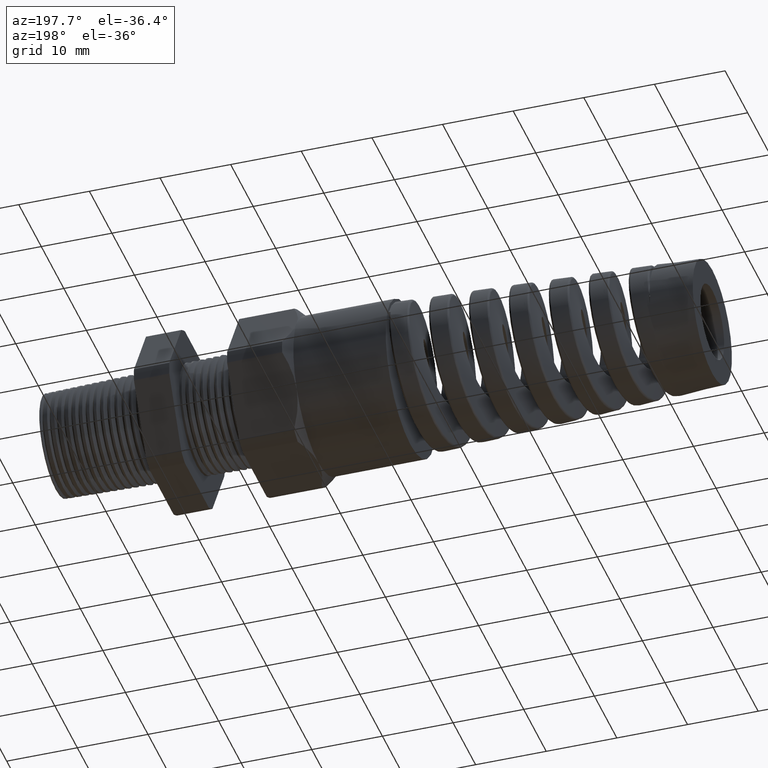
[diagram: clean part render]
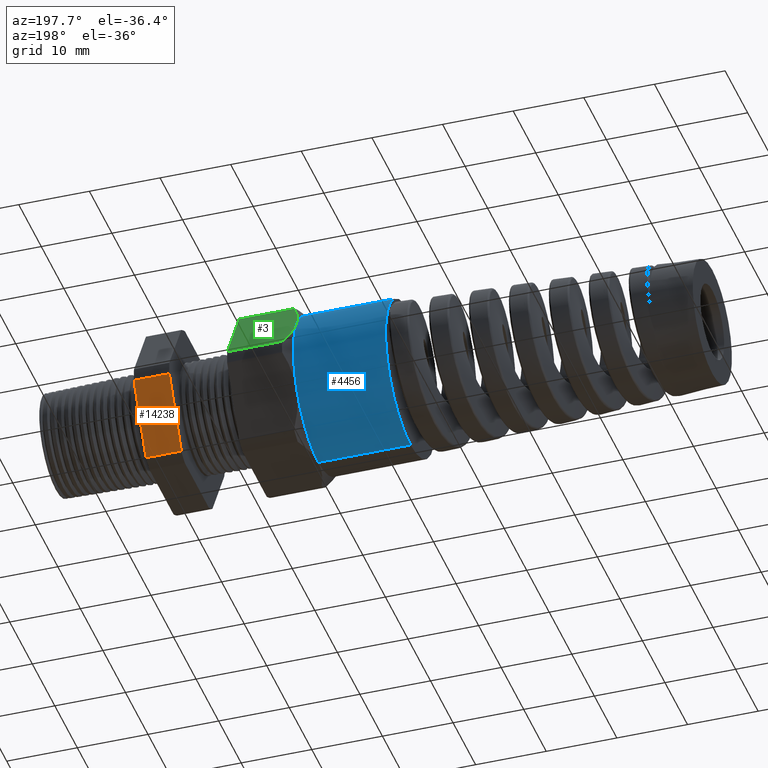
[diagram: same view with three faces highlighted in distinct colors, each labeled with its STEP entity id]
A machine part, auxiliary view with three faces highlighted in distinct colors.
Their STEP definitions:

[orange] entity #14238 — the highlighted planar face has unit normal (0, 0.866, -0.5).
#3523 = VERTEX_POINT ( 'NONE', #7512 ) ;
#3803 = VERTEX_POINT ( 'NONE', #7496 ) ;
#5005 = EDGE_CURVE ( 'NONE', #3523, #3803, #9235, .T. ) ;
#7496 = CARTESIAN_POINT ( 'NONE',  ( -0.3100000000000000000, 0.4815054990391102200, -0.03600801154045404200 ) ) ;
#7512 = CARTESIAN_POINT ( 'NONE',  ( -0.3100000000000000000, 0.2719366022533517000, -0.3989919884595459800 ) ) ;
#9232 = DIRECTION ( 'NONE',  ( 0.0000000000000000000, 0.4999999999999998300, 0.8660254037844386000 ) ) ;
#9233 = VECTOR ( 'NONE', #9232, 39.37007874015748900 ) ;
#9234 = CARTESIAN_POINT ( 'NONE',  ( -0.3100000000000000000, 0.5942210506462308800, 0.1592210506462307400 ) ) ;
#9235 = LINE ( 'NONE', #9234, #9233 ) ;
#9409 = DIRECTION ( 'NONE',  ( 0.0000000000000000000, 0.4999999999999998300, 0.8660254037844386000 ) ) ;
#9410 = DIRECTION ( 'NONE',  ( 0.0000000000000000000, 0.8660254037844387100, -0.4999999999999998900 ) ) ;
#9411 = CARTESIAN_POINT ( 'NONE',  ( 0.2800000000000000300, 0.4815054990391102700, -0.03600801154045400000 ) ) ;
#9412 = AXIS2_PLACEMENT_3D ( 'NONE', #9411, #9410, #9409 ) ;
#9413 = PLANE ( 'NONE',  #9412 ) ;
#9414 = FACE_OUTER_BOUND ( 'NONE', #14229, .T. ) ;
#9428 = DIRECTION ( 'NONE',  ( -1.000000000000000000, 0.0000000000000000000, 0.0000000000000000000 ) ) ;
#9429 = VECTOR ( 'NONE', #9428, 39.37007874015748100 ) ;
#9430 = CARTESIAN_POINT ( 'NONE',  ( 0.2800000000000000300, 0.4815054990391102700, -0.03600801154045400000 ) ) ;
#9432 = LINE ( 'NONE', #9430, #9429 ) ;
#9438 = CARTESIAN_POINT ( 'NONE',  ( -0.5068503937007874400, 0.4815054990391102700, -0.03600801154045400000 ) ) ;
#9449 = DIRECTION ( 'NONE',  ( -1.000000000000000000, 0.0000000000000000000, 0.0000000000000000000 ) ) ;
#9450 = VECTOR ( 'NONE', #9449, 39.37007874015748100 ) ;
#9451 = CARTESIAN_POINT ( 'NONE',  ( 0.2800000000000000300, 0.2719366022533517000, -0.3989919884595459800 ) ) ;
#9452 = LINE ( 'NONE', #9451, #9450 ) ;
#9453 = CARTESIAN_POINT ( 'NONE',  ( -0.5068503937007874400, 0.2719366022533516400, -0.3989919884595459800 ) ) ;
#9455 = DIRECTION ( 'NONE',  ( 0.0000000000000000000, -0.4999999999999998300, -0.8660254037844386000 ) ) ;
#9456 = VECTOR ( 'NONE', #9455, 39.37007874015748900 ) ;
#9457 = CARTESIAN_POINT ( 'NONE',  ( -0.5068503937007874400, 0.5942210506462308800, 0.1592210506462307400 ) ) ;
#9458 = LINE ( 'NONE', #9457, #9456 ) ;
#14229 = EDGE_LOOP ( 'NONE', ( #14233, #14268, #14264, #14261 ) ) ;
#14233 = ORIENTED_EDGE ( 'NONE', *, *, #14236, .F. ) ;
#14235 = VERTEX_POINT ( 'NONE', #9438 ) ;
#14236 = EDGE_CURVE ( 'NONE', #3803, #14235, #9432, .T. ) ;
#14238 = ADVANCED_FACE ( 'NONE', ( #9414 ), #9413, .T. ) ;
#14258 = EDGE_CURVE ( 'NONE', #14235, #14262, #9458, .T. ) ;
#14261 = ORIENTED_EDGE ( 'NONE', *, *, #14258, .F. ) ;
#14262 = VERTEX_POINT ( 'NONE', #9453 ) ;
#14263 = EDGE_CURVE ( 'NONE', #3523, #14262, #9452, .T. ) ;
#14264 = ORIENTED_EDGE ( 'NONE', *, *, #14263, .T. ) ;
#14268 = ORIENTED_EDGE ( 'NONE', *, *, #5005, .F. ) ;

[blue] entity #4456 — the highlighted cylindrical surface (partial cylindrical patch) has radius 11.049 mm, axis along (1, 0, 0).
#4383 = VERTEX_POINT ( 'NONE', #7878 ) ;
#4399 = VERTEX_POINT ( 'NONE', #8137 ) ;
#4441 = EDGE_LOOP ( 'NONE', ( #4454, #4492, #4483, #4478, #4481, #4511 ) ) ;
#4449 = EDGE_CURVE ( 'NONE', #4383, #4399, #8426, .T. ) ;
#4454 = ORIENTED_EDGE ( 'NONE', *, *, #4449, .F. ) ;
#4456 = ADVANCED_FACE ( 'NONE', ( #8399 ), #8391, .T. ) ;
#4477 = VERTEX_POINT ( 'NONE', #8537 ) ;
#4478 = ORIENTED_EDGE ( 'NONE', *, *, #4482, .F. ) ;
#4479 = EDGE_CURVE ( 'NONE', #4484, #4477, #8530, .T. ) ;
#4480 = VERTEX_POINT ( 'NONE', #8533 ) ;
#4481 = ORIENTED_EDGE ( 'NONE', *, *, #4479, .F. ) ;
#4482 = EDGE_CURVE ( 'NONE', #4477, #4480, #8678, .T. ) ;
#4483 = ORIENTED_EDGE ( 'NONE', *, *, #4485, .F. ) ;
#4484 = VERTEX_POINT ( 'NONE', #8670 ) ;
#4485 = EDGE_CURVE ( 'NONE', #4480, #4489, #8663, .T. ) ;
#4488 = EDGE_CURVE ( 'NONE', #4383, #4489, #8664, .T. ) ;
#4489 = VERTEX_POINT ( 'NONE', #8644 ) ;
#4492 = ORIENTED_EDGE ( 'NONE', *, *, #4488, .T. ) ;
#4511 = ORIENTED_EDGE ( 'NONE', *, *, #4512, .F. ) ;
#4512 = EDGE_CURVE ( 'NONE', #4399, #4484, #8742, .T. ) ;
#7878 = CARTESIAN_POINT ( 'NONE',  ( -1.697947509874504500, 5.327213576290985700E-017, 0.4349999999999999400 ) ) ;
#8137 = CARTESIAN_POINT ( 'NONE',  ( -1.697947509874504500, 0.0000000000000000000, -0.4349999999999999400 ) ) ;
#8389 = AXIS2_PLACEMENT_3D ( 'NONE', #8397, #8518, #8516 ) ;
#8391 = CYLINDRICAL_SURFACE ( 'NONE', #8389, 0.4350000000000000000 ) ;
#8397 = CARTESIAN_POINT ( 'NONE',  ( 1.326736918405036800, 0.0000000000000000000, 0.0000000000000000000 ) ) ;
#8399 = FACE_OUTER_BOUND ( 'NONE', #4441, .T. ) ;
#8418 = DIRECTION ( 'NONE',  ( 0.0000000000000000000, 0.0000000000000000000, 1.000000000000000000 ) ) ;
#8420 = DIRECTION ( 'NONE',  ( -1.000000000000000000, 0.0000000000000000000, 0.0000000000000000000 ) ) ;
#8422 = CARTESIAN_POINT ( 'NONE',  ( -1.697947509874504500, 0.0000000000000000000, 0.0000000000000000000 ) ) ;
#8424 = AXIS2_PLACEMENT_3D ( 'NONE', #8422, #8420, #8418 ) ;
#8426 = CIRCLE ( 'NONE', #8424, 0.4349999999999999400 ) ;
#8516 = DIRECTION ( 'NONE',  ( 0.0000000000000000000, 0.0000000000000000000, -1.000000000000000000 ) ) ;
#8518 = DIRECTION ( 'NONE',  ( 1.000000000000000000, 0.0000000000000000000, 0.0000000000000000000 ) ) ;
#8520 = CARTESIAN_POINT ( 'NONE',  ( -1.183700787401574600, 0.0000000000000000000, 0.0000000000000000000 ) ) ;
#8523 = DIRECTION ( 'NONE',  ( 0.0000000000000000000, 0.0000000000000000000, -1.000000000000000000 ) ) ;
#8525 = DIRECTION ( 'NONE',  ( 1.000000000000000000, 0.0000000000000000000, 0.0000000000000000000 ) ) ;
#8527 = CARTESIAN_POINT ( 'NONE',  ( -1.183700787401574600, 0.0000000000000000000, 0.0000000000000000000 ) ) ;
#8528 = AXIS2_PLACEMENT_3D ( 'NONE', #8527, #8525, #8523 ) ;
#8530 = CIRCLE ( 'NONE', #8528, 0.4350000000000000000 ) ;
#8533 = CARTESIAN_POINT ( 'NONE',  ( -1.183700787401574600, 0.3767210506462309000, 0.2175000000000000000 ) ) ;
#8537 = CARTESIAN_POINT ( 'NONE',  ( -1.183700787401574600, 0.3767210506462309600, -0.2175000000000000300 ) ) ;
#8644 = CARTESIAN_POINT ( 'NONE',  ( -1.183700787401574600, 0.0000000000000000000, 0.4349999999999998900 ) ) ;
#8646 = DIRECTION ( 'NONE',  ( 1.000000000000000000, 0.0000000000000000000, 0.0000000000000000000 ) ) ;
#8648 = VECTOR ( 'NONE', #8646, 39.37007874015748100 ) ;
#8650 = CARTESIAN_POINT ( 'NONE',  ( 1.326736918405036800, 5.327213576290986400E-017, 0.4350000000000000000 ) ) ;
#8657 = DIRECTION ( 'NONE',  ( 0.0000000000000000000, 0.0000000000000000000, -1.000000000000000000 ) ) ;
#8659 = DIRECTION ( 'NONE',  ( 1.000000000000000000, 0.0000000000000000000, 0.0000000000000000000 ) ) ;
#8660 = CARTESIAN_POINT ( 'NONE',  ( -1.183700787401574600, 0.0000000000000000000, 0.0000000000000000000 ) ) ;
#8661 = AXIS2_PLACEMENT_3D ( 'NONE', #8660, #8659, #8657 ) ;
#8663 = CIRCLE ( 'NONE', #8661, 0.4350000000000000000 ) ;
#8664 = LINE ( 'NONE', #8650, #8648 ) ;
#8670 = CARTESIAN_POINT ( 'NONE',  ( -1.183700787401574600, 0.0000000000000000000, -0.4350000000000000500 ) ) ;
#8673 = DIRECTION ( 'NONE',  ( 0.0000000000000000000, 0.0000000000000000000, -1.000000000000000000 ) ) ;
#8675 = DIRECTION ( 'NONE',  ( 1.000000000000000000, 0.0000000000000000000, 0.0000000000000000000 ) ) ;
#8676 = AXIS2_PLACEMENT_3D ( 'NONE', #8520, #8675, #8673 ) ;
#8678 = CIRCLE ( 'NONE', #8676, 0.4350000000000000000 ) ;
#8737 = DIRECTION ( 'NONE',  ( 1.000000000000000000, 0.0000000000000000000, 0.0000000000000000000 ) ) ;
#8739 = VECTOR ( 'NONE', #8737, 39.37007874015748100 ) ;
#8740 = CARTESIAN_POINT ( 'NONE',  ( 1.326736918405036800, 0.0000000000000000000, -0.4350000000000000000 ) ) ;
#8742 = LINE ( 'NONE', #8740, #8739 ) ;

[green] entity #3 — the highlighted planar face has unit normal (0, 0.866, 0.5).
#1 = ORIENTED_EDGE ( 'NONE', *, *, #2, .T. ) ;
#2 = EDGE_CURVE ( 'NONE', #14362, #4480, #1619, .T. ) ;
#3 = ADVANCED_FACE ( 'NONE', ( #1621 ), #1620, .T. ) ;
#6 = EDGE_CURVE ( 'NONE', #14419, #14362, #1600, .T. ) ;
#8 = EDGE_LOOP ( 'NONE', ( #17, #1, #48, #51, #29 ) ) ;
#17 = ORIENTED_EDGE ( 'NONE', *, *, #6, .T. ) ;
#25 = VERTEX_POINT ( 'NONE', #1629 ) ;
#26 = EDGE_CURVE ( 'NONE', #14419, #25, #1628, .T. ) ;
#29 = ORIENTED_EDGE ( 'NONE', *, *, #26, .F. ) ;
#47 = VERTEX_POINT ( 'NONE', #1690 ) ;
#48 = ORIENTED_EDGE ( 'NONE', *, *, #49, .T. ) ;
#49 = EDGE_CURVE ( 'NONE', #4480, #47, #1689, .T. ) ;
#50 = EDGE_CURVE ( 'NONE', #25, #47, #1688, .T. ) ;
#51 = ORIENTED_EDGE ( 'NONE', *, *, #50, .F. ) ;
#1597 = DIRECTION ( 'NONE',  ( -1.000000000000000000, 0.0000000000000000000, 0.0000000000000000000 ) ) ;
#1598 = VECTOR ( 'NONE', #1597, 39.37007874015748100 ) ;
#1599 = CARTESIAN_POINT ( 'NONE',  ( 0.2800000000000000300, 0.4815054990391102200, 0.03600801154045397300 ) ) ;
#1600 = LINE ( 'NONE', #1599, #1598 ) ;
#1606 = DIRECTION ( 'NONE',  ( 0.0000000000000000000, -0.4999999999999998300, 0.8660254037844386000 ) ) ;
#1607 = DIRECTION ( 'NONE',  ( 0.0000000000000000000, 0.8660254037844387100, 0.4999999999999998900 ) ) ;
#1608 = CARTESIAN_POINT ( 'NONE',  ( 0.2800000000000000300, 0.2719366022533515900, 0.3989919884595459800 ) ) ;
#1610 = CARTESIAN_POINT ( 'NONE',  ( -1.183700787401574600, 0.3767210506462309000, 0.2175000000000000000 ) ) ;
#1611 = CARTESIAN_POINT ( 'NONE',  ( -1.183700787401574400, 0.3857925414957258400, 0.2017877169482785700 ) ) ;
#1612 = CARTESIAN_POINT ( 'NONE',  ( -1.182536090834003900, 0.3949608729582814200, 0.1859077010344998800 ) ) ;
#1613 = CARTESIAN_POINT ( 'NONE',  ( -1.178089260520927400, 0.4128791740769160400, 0.1548722931117064400 ) ) ;
#1614 = CARTESIAN_POINT ( 'NONE',  ( -1.174815962699240500, 0.4217074978350993100, 0.1395811878168657400 ) ) ;
#1615 = CARTESIAN_POINT ( 'NONE',  ( -1.162280890324095100, 0.4478541282806173300, 0.09429389543850157100 ) ) ;
#1616 = CARTESIAN_POINT ( 'NONE',  ( -1.150320593554597900, 0.4648361697441962300, 0.06488013680734125400 ) ) ;
#1617 = CARTESIAN_POINT ( 'NONE',  ( -1.135850787401574600, 0.4815054990391102200, 0.03600801154045395200 ) ) ;
#1618 = AXIS2_PLACEMENT_3D ( 'NONE', #1608, #1607, #1606 ) ;
#1619 = B_SPLINE_CURVE_WITH_KNOTS ( 'NONE', 3,
 ( #1617, #1616, #1615, #1614, #1613, #1612, #1611, #1610 ),
 .UNSPECIFIED., .F., .F.,
 ( 4, 2, 2, 4 ),
 ( 2.483252225657230200E-007, 0.002731890542274191100, 0.004097711650800006300, 0.005463532759325821100 ),
 .UNSPECIFIED. ) ;
#1620 = PLANE ( 'NONE',  #1618 ) ;
#1621 = FACE_OUTER_BOUND ( 'NONE', #8, .T. ) ;
#1625 = DIRECTION ( 'NONE',  ( 0.0000000000000000000, -0.4999999999999998300, 0.8660254037844386000 ) ) ;
#1626 = VECTOR ( 'NONE', #1625, 39.37007874015748900 ) ;
#1627 = CARTESIAN_POINT ( 'NONE',  ( -0.8293700787401573300, 0.4554710506462308400, 0.08110099890395093500 ) ) ;
#1628 = LINE ( 'NONE', #1627, #1626 ) ;
#1629 = CARTESIAN_POINT ( 'NONE',  ( -0.8293700787401573300, 0.2719366022533515900, 0.3989919884595459800 ) ) ;
#1679 = DIRECTION ( 'NONE',  ( -1.000000000000000000, 0.0000000000000000000, 0.0000000000000000000 ) ) ;
#1680 = VECTOR ( 'NONE', #1679, 39.37007874015748100 ) ;
#1681 = CARTESIAN_POINT ( 'NONE',  ( -1.135850787401574900, 0.2719366022533515900, 0.3989919884595459800 ) ) ;
#1682 = CARTESIAN_POINT ( 'NONE',  ( -1.150338517520593800, 0.2886265800965801500, 0.3700840988578752400 ) ) ;
#1683 = CARTESIAN_POINT ( 'NONE',  ( -1.162467496876745900, 0.3058768505272216300, 0.3402057540277008700 ) ) ;
#1684 = CARTESIAN_POINT ( 'NONE',  ( -1.179123414147936300, 0.3408216966984755100, 0.2796795049964108700 ) ) ;
#1685 = CARTESIAN_POINT ( 'NONE',  ( -1.183700787401574100, 0.3585905100533524600, 0.2489030174755555700 ) ) ;
#1686 = CARTESIAN_POINT ( 'NONE',  ( -1.183700787401574600, 0.3767210506462309000, 0.2175000000000000000 ) ) ;
#1687 = CARTESIAN_POINT ( 'NONE',  ( 0.2800000000000000300, 0.2719366022533515900, 0.3989919884595459800 ) ) ;
#1688 = LINE ( 'NONE', #1687, #1680 ) ;
#1689 = B_SPLINE_CURVE_WITH_KNOTS ( 'NONE', 3,
 ( #1686, #1685, #1684, #1683, #1682, #1681 ),
 .UNSPECIFIED., .F., .F.,
 ( 4, 2, 4 ),
 ( 0.005463532759325821100, 0.008193301819514674900, 0.01092307087970352900 ),
 .UNSPECIFIED. ) ;
#1690 = CARTESIAN_POINT ( 'NONE',  ( -1.135850787401574900, 0.2719366022533515900, 0.3989919884595459800 ) ) ;
#4480 = VERTEX_POINT ( 'NONE', #8533 ) ;
#8533 = CARTESIAN_POINT ( 'NONE',  ( -1.183700787401574600, 0.3767210506462309000, 0.2175000000000000000 ) ) ;
#9812 = CARTESIAN_POINT ( 'NONE',  ( -1.135850787401574600, 0.4815054990391102200, 0.03600801154045395200 ) ) ;
#10149 = CARTESIAN_POINT ( 'NONE',  ( -0.8293700787401573300, 0.4815054990391102200, 0.03600801154045397300 ) ) ;
#14362 = VERTEX_POINT ( 'NONE', #9812 ) ;
#14419 = VERTEX_POINT ( 'NONE', #10149 ) ;